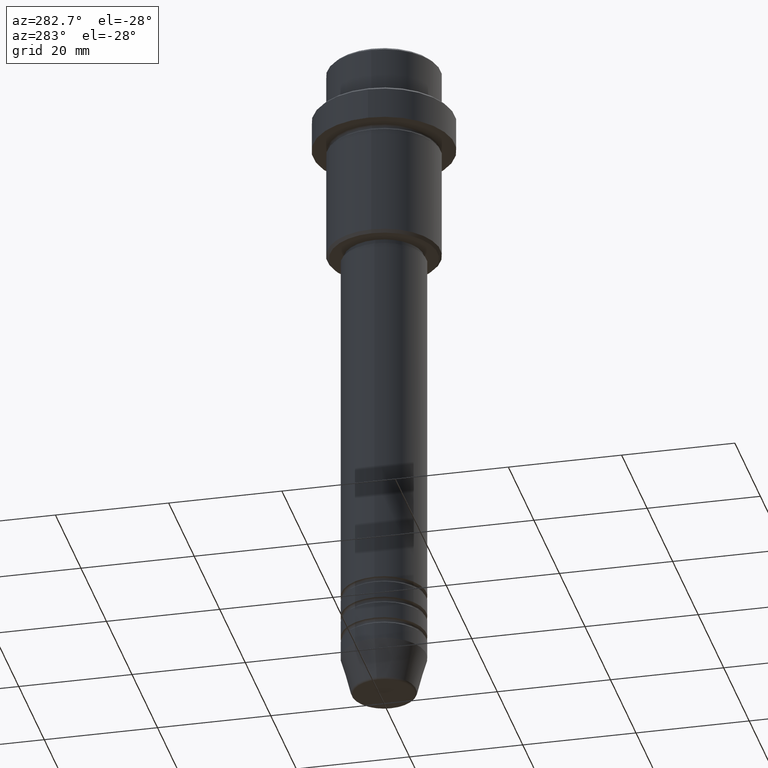
[diagram: clean part render]
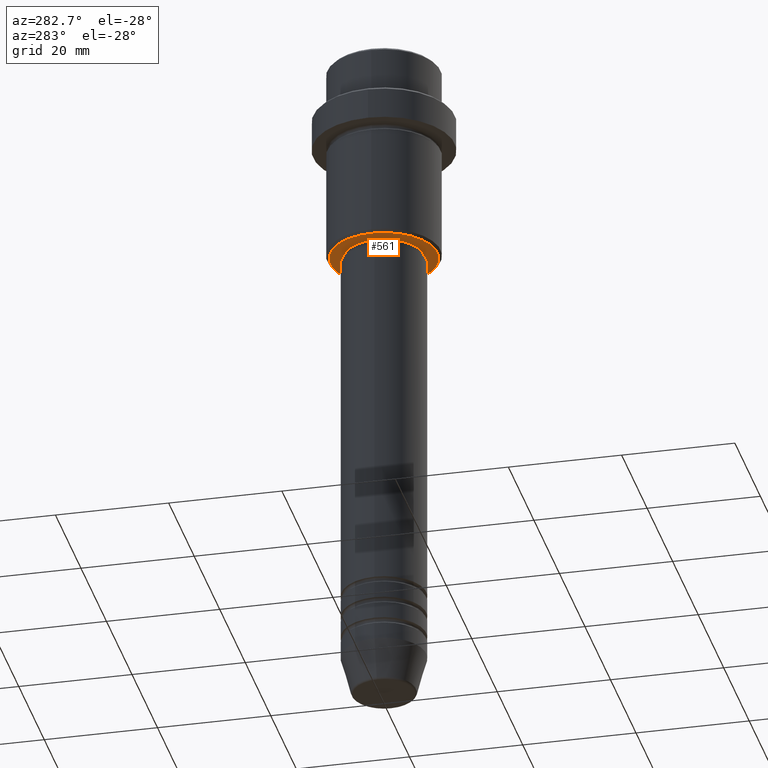
[diagram: same view with one face highlighted and labeled with its STEP entity id]
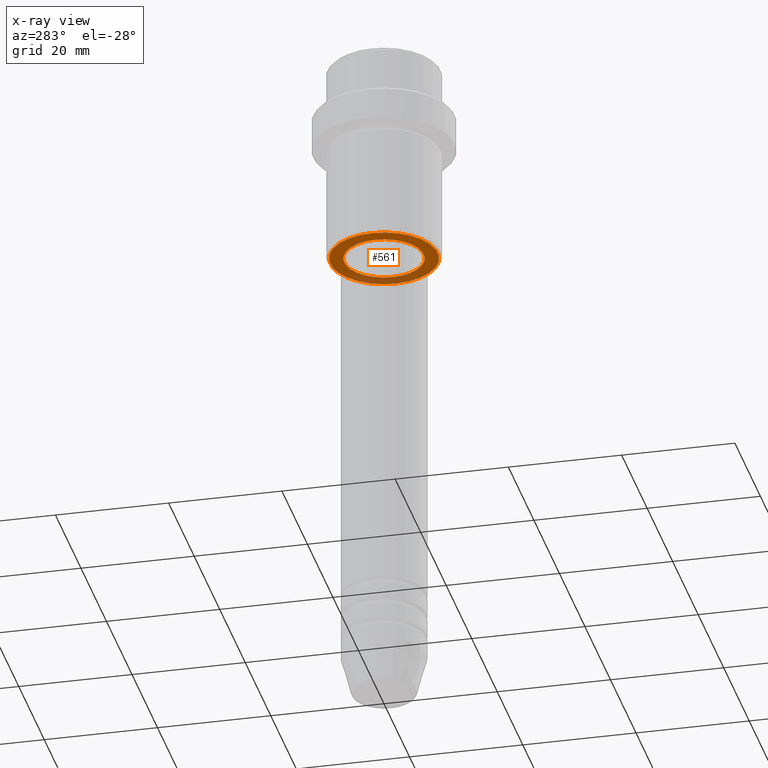
[diagram: x-ray of the same camera — body ghosted, the highlighted face saturated]
A machine part, auxiliary view. The second image highlights one B-rep face of the part: STEP entity #561.
The next image is the same camera in x-ray: the body ghosted, the highlighted face saturated — about 23% of this face is hidden behind the body in this view.
In plain terms, the highlighted planar face has unit normal (0, 0, -1).
Its self-contained STEP definition (entity closure, byte-faithful):
#26 = ORIENTED_EDGE ( 'NONE', *, *, #992, .T. ) ;
#53 = EDGE_LOOP ( 'NONE', ( #220, #483 ) ) ;
#62 = EDGE_CURVE ( 'NONE', #239, #1305, #174, .T. ) ;
#64 = AXIS2_PLACEMENT_3D ( 'NONE', #379, #1361, #166 ) ;
#75 = CARTESIAN_POINT ( 'NONE',  ( 0.000000000000000000, 0.000000000000000000, -36.00000000000000711 ) ) ;
#166 = DIRECTION ( 'NONE',  ( -1.000000000000000000, 0.000000000000000000, 0.000000000000000000 ) ) ;
#174 = CIRCLE ( 'NONE', #361, 6.999999999999993783 ) ;
#183 = FACE_BOUND ( 'NONE', #53, .T. ) ;
#220 = ORIENTED_EDGE ( 'NONE', *, *, #1169, .T. ) ;
#239 = VERTEX_POINT ( 'NONE', #442 ) ;
#245 = CIRCLE ( 'NONE', #64, 9.499999999999980460 ) ;
#248 = CIRCLE ( 'NONE', #437, 9.499999999999980460 ) ;
#312 = FACE_OUTER_BOUND ( 'NONE', #758, .T. ) ;
#322 = AXIS2_PLACEMENT_3D ( 'NONE', #1115, #1102, #351 ) ;
#327 = EDGE_CURVE ( 'NONE', #676, #454, #245, .T. ) ;
#351 = DIRECTION ( 'NONE',  ( 1.000000000000000000, 0.000000000000000000, 0.000000000000000000 ) ) ;
#358 = DIRECTION ( 'NONE',  ( 0.000000000000000000, 0.000000000000000000, -1.000000000000000000 ) ) ;
#361 = AXIS2_PLACEMENT_3D ( 'NONE', #75, #838, #521 ) ;
#379 = CARTESIAN_POINT ( 'NONE',  ( 0.000000000000000000, 0.000000000000000000, -36.00000000000000711 ) ) ;
#396 = CARTESIAN_POINT ( 'NONE',  ( 6.999999999999993783, 0.000000000000000000, -36.00000000000000711 ) ) ;
#437 = AXIS2_PLACEMENT_3D ( 'NONE', #1242, #358, #486 ) ;
#442 = CARTESIAN_POINT ( 'NONE',  ( -6.999999999999993783, 8.572527594031465301E-16, -36.00000000000000711 ) ) ;
#454 = VERTEX_POINT ( 'NONE', #593 ) ;
#483 = ORIENTED_EDGE ( 'NONE', *, *, #62, .T. ) ;
#486 = DIRECTION ( 'NONE',  ( -1.000000000000000000, 0.000000000000000000, 0.000000000000000000 ) ) ;
#521 = DIRECTION ( 'NONE',  ( 1.000000000000000000, 0.000000000000000000, 0.000000000000000000 ) ) ;
#561 = ADVANCED_FACE ( 'NONE', ( #312, #183 ), #1284, .T. ) ;
#593 = CARTESIAN_POINT ( 'NONE',  ( -9.499999999999980460, 1.194030629168668089E-15, -36.00000000000000711 ) ) ;
#601 = ORIENTED_EDGE ( 'NONE', *, *, #327, .T. ) ;
#646 = DIRECTION ( 'NONE',  ( -1.000000000000000000, 0.000000000000000000, -0.000000000000000000 ) ) ;
#676 = VERTEX_POINT ( 'NONE', #1204 ) ;
#749 = DIRECTION ( 'NONE',  ( 0.000000000000000000, 0.000000000000000000, -1.000000000000000000 ) ) ;
#758 = EDGE_LOOP ( 'NONE', ( #601, #26 ) ) ;
#803 = CIRCLE ( 'NONE', #322, 6.999999999999993783 ) ;
#838 = DIRECTION ( 'NONE',  ( -0.000000000000000000, -0.000000000000000000, 1.000000000000000000 ) ) ;
#861 = CARTESIAN_POINT ( 'NONE',  ( 0.000000000000000000, 10.00000000000000000, -36.00000000000000711 ) ) ;
#992 = EDGE_CURVE ( 'NONE', #454, #676, #248, .T. ) ;
#1102 = DIRECTION ( 'NONE',  ( -0.000000000000000000, -0.000000000000000000, 1.000000000000000000 ) ) ;
#1115 = CARTESIAN_POINT ( 'NONE',  ( 0.000000000000000000, 0.000000000000000000, -36.00000000000000711 ) ) ;
#1169 = EDGE_CURVE ( 'NONE', #1305, #239, #803, .T. ) ;
#1187 = AXIS2_PLACEMENT_3D ( 'NONE', #861, #749, #646 ) ;
#1204 = CARTESIAN_POINT ( 'NONE',  ( 9.499999999999980460, 0.000000000000000000, -36.00000000000000711 ) ) ;
#1242 = CARTESIAN_POINT ( 'NONE',  ( 0.000000000000000000, 0.000000000000000000, -36.00000000000000711 ) ) ;
#1284 = PLANE ( 'NONE',  #1187 ) ;
#1305 = VERTEX_POINT ( 'NONE', #396 ) ;
#1361 = DIRECTION ( 'NONE',  ( 0.000000000000000000, 0.000000000000000000, -1.000000000000000000 ) ) ;